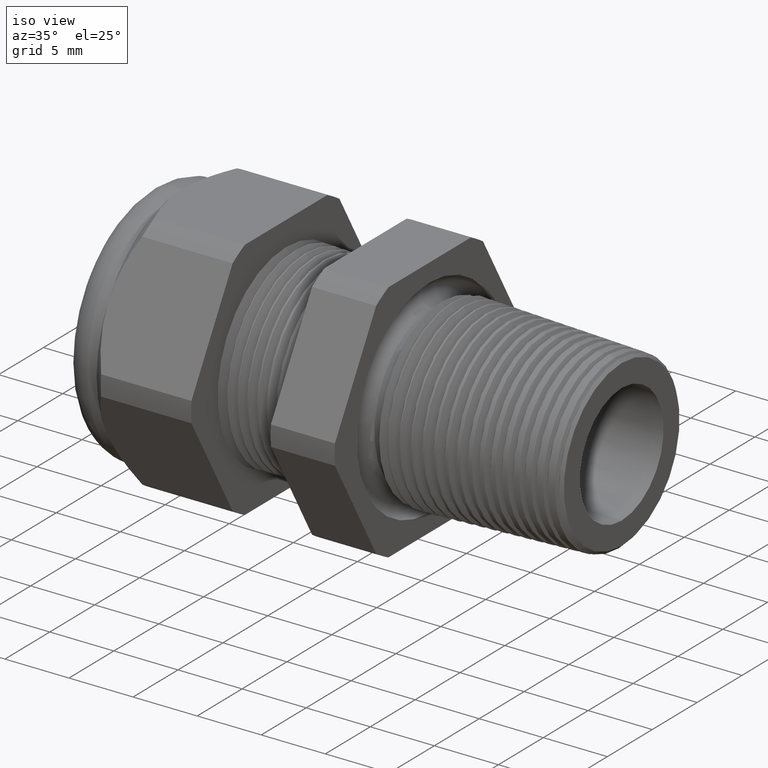
[diagram: clean part render]
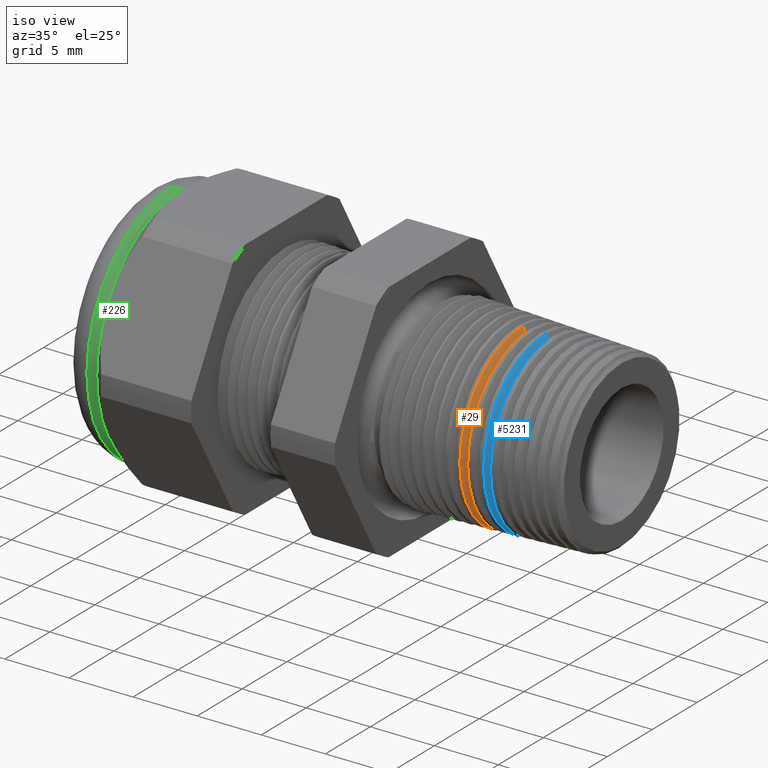
[diagram: same view with three faces highlighted in distinct colors, each labeled with its STEP entity id]
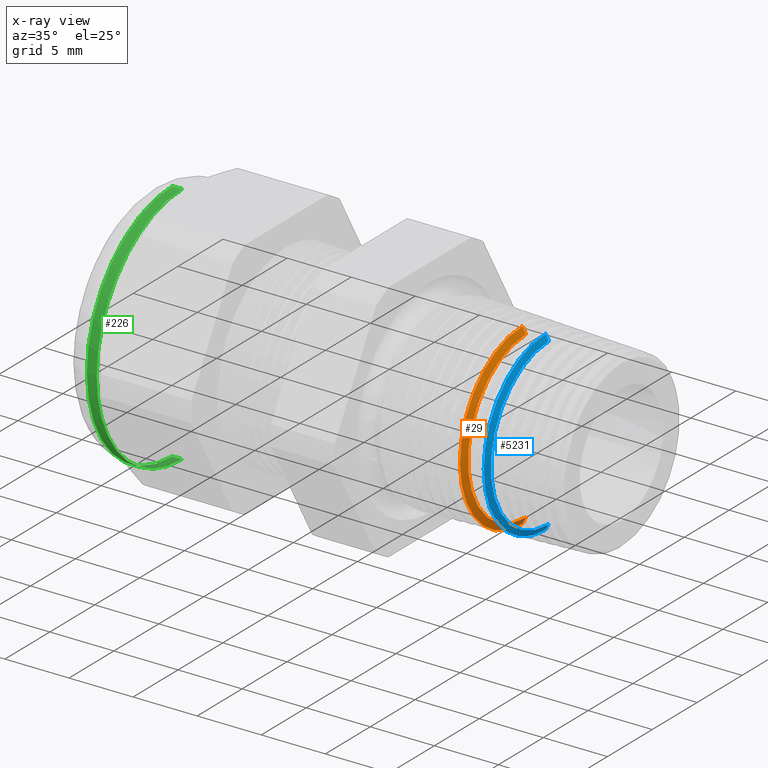
[diagram: x-ray of the same camera — body ghosted, the three highlighted faces saturated]
A machine part, iso view with three faces highlighted in distinct colors.
The next image is the same camera in x-ray (body ghosted, the three faces saturated) — at least one of them is partly hidden behind the body in this view.
Their STEP definitions:

[orange] entity #29 — the highlighted conical surface has half-angle 62 deg.
#29 = ADVANCED_FACE ( 'NONE', ( #1609 ), #1608, .T. ) ;
#30 = EDGE_LOOP ( 'NONE', ( #5206, #5205, #5204, #5195 ) ) ;
#663 = VERTEX_POINT ( 'NONE', #2816 ) ;
#664 = VERTEX_POINT ( 'NONE', #2815 ) ;
#728 = VERTEX_POINT ( 'NONE', #2939 ) ;
#735 = EDGE_CURVE ( 'NONE', #664, #838, #2931, .T. ) ;
#802 = EDGE_CURVE ( 'NONE', #663, #728, #2537, .T. ) ;
#838 = VERTEX_POINT ( 'NONE', #3167 ) ;
#1486 = EDGE_CURVE ( 'NONE', #838, #728, #4338, .T. ) ;
#1605 = DIRECTION ( 'NONE',  ( 0.0000000000000000000, 0.0000000000000000000, 1.000000000000000000 ) ) ;
#1606 = DIRECTION ( 'NONE',  ( -1.000000000000000000, 0.0000000000000000000, 0.0000000000000000000 ) ) ;
#1607 = AXIS2_PLACEMENT_3D ( 'NONE', #1613, #1606, #1605 ) ;
#1608 = CONICAL_SURFACE ( 'NONE', #1607, 0.2846046150878539500, 1.082104136236471800 ) ;
#1609 = FACE_OUTER_BOUND ( 'NONE', #30, .T. ) ;
#1613 = CARTESIAN_POINT ( 'NONE',  ( -0.02999999999999995400, 0.0000000000000000000, 0.0000000000000000000 ) ) ;
#2537 = LINE ( 'NONE', #2795, #2794 ) ;
#2793 = DIRECTION ( 'NONE',  ( -0.4694715627859018000, 1.081298943409538000E-016, -0.8829475928589209900 ) ) ;
#2794 = VECTOR ( 'NONE', #2793, 39.37007874015748100 ) ;
#2795 = CARTESIAN_POINT ( 'NONE',  ( -0.02999999999999995400, 3.485401308899049100E-017, -0.2846046150878539500 ) ) ;
#2815 = CARTESIAN_POINT ( 'NONE',  ( -0.01373702801092103300, 0.0000000000000000000, 0.2540184132628081100 ) ) ;
#2816 = CARTESIAN_POINT ( 'NONE',  ( -0.01373702801092103300, 3.237110271424059000E-017, -0.2540184132628081100 ) ) ;
#2928 = DIRECTION ( 'NONE',  ( -0.4694715627859018000, 0.0000000000000000000, 0.8829475928589209900 ) ) ;
#2929 = VECTOR ( 'NONE', #2928, 39.37007874015748100 ) ;
#2930 = CARTESIAN_POINT ( 'NONE',  ( -0.02999999999999995400, 0.0000000000000000000, 0.2846046150878539500 ) ) ;
#2931 = LINE ( 'NONE', #2930, #2929 ) ;
#2939 = CARTESIAN_POINT ( 'NONE',  ( -0.02470268431848090000, 3.365724902851396500E-017, -0.2746418132903272200 ) ) ;
#3167 = CARTESIAN_POINT ( 'NONE',  ( -0.02470268431848090000, 0.0000000000000000000, 0.2746418132903272200 ) ) ;
#4338 = CIRCLE ( 'NONE', #4396, 0.2746418132903272200 ) ;
#4393 = DIRECTION ( 'NONE',  ( 0.0000000000000000000, 0.0000000000000000000, 1.000000000000000000 ) ) ;
#4394 = DIRECTION ( 'NONE',  ( 1.000000000000000000, 0.0000000000000000000, 0.0000000000000000000 ) ) ;
#4395 = CARTESIAN_POINT ( 'NONE',  ( -0.02470268431848090000, 0.0000000000000000000, 0.0000000000000000000 ) ) ;
#4396 = AXIS2_PLACEMENT_3D ( 'NONE', #4395, #4394, #4393 ) ;
#4600 = DIRECTION ( 'NONE',  ( 0.0000000000000000000, 0.0000000000000000000, -1.000000000000000000 ) ) ;
#4601 = DIRECTION ( 'NONE',  ( 1.000000000000000000, 0.0000000000000000000, 0.0000000000000000000 ) ) ;
#4602 = AXIS2_PLACEMENT_3D ( 'NONE', #4607, #4601, #4600 ) ;
#4603 = CIRCLE ( 'NONE', #4602, 0.2540184132628081100 ) ;
#4607 = CARTESIAN_POINT ( 'NONE',  ( -0.01373702801092103300, 0.0000000000000000000, 0.0000000000000000000 ) ) ;
#5195 = ORIENTED_EDGE ( 'NONE', *, *, #1486, .T. ) ;
#5203 = EDGE_CURVE ( 'NONE', #664, #663, #4603, .T. ) ;
#5204 = ORIENTED_EDGE ( 'NONE', *, *, #735, .T. ) ;
#5205 = ORIENTED_EDGE ( 'NONE', *, *, #5203, .F. ) ;
#5206 = ORIENTED_EDGE ( 'NONE', *, *, #802, .F. ) ;

[blue] entity #5231 — the highlighted conical surface has half-angle 62 deg.
#642 = VERTEX_POINT ( 'NONE', #2732 ) ;
#697 = EDGE_CURVE ( 'NONE', #736, #751, #2882, .T. ) ;
#736 = VERTEX_POINT ( 'NONE', #2927 ) ;
#749 = EDGE_CURVE ( 'NONE', #642, #750, #2972, .T. ) ;
#750 = VERTEX_POINT ( 'NONE', #2963 ) ;
#751 = VERTEX_POINT ( 'NONE', #2962 ) ;
#1419 = EDGE_CURVE ( 'NONE', #751, #750, #4220, .T. ) ;
#2732 = CARTESIAN_POINT ( 'NONE',  ( 0.05626297198907897300, 3.221859129759208100E-017, -0.2540184132628081100 ) ) ;
#2879 = DIRECTION ( 'NONE',  ( -0.4694715627859018000, 0.0000000000000000000, 0.8829475928589209900 ) ) ;
#2880 = VECTOR ( 'NONE', #2879, 39.37007874015748100 ) ;
#2881 = CARTESIAN_POINT ( 'NONE',  ( 0.04000000000000004900, 0.0000000000000000000, 0.2846046150878539500 ) ) ;
#2882 = LINE ( 'NONE', #2881, #2880 ) ;
#2927 = CARTESIAN_POINT ( 'NONE',  ( 0.05626297198907897300, 0.0000000000000000000, 0.2540184132628081100 ) ) ;
#2962 = CARTESIAN_POINT ( 'NONE',  ( 0.04662164460189885400, 0.0000000000000000000, 0.2721511128409456200 ) ) ;
#2963 = CARTESIAN_POINT ( 'NONE',  ( 0.04662164460189885400, 3.335825438049709200E-017, -0.2721511128409456200 ) ) ;
#2964 = DIRECTION ( 'NONE',  ( -0.4694715627859018000, 1.081298943409538000E-016, -0.8829475928589209900 ) ) ;
#2965 = VECTOR ( 'NONE', #2964, 39.37007874015748100 ) ;
#2966 = CARTESIAN_POINT ( 'NONE',  ( 0.04000000000000004900, 3.485401308899049100E-017, -0.2846046150878539500 ) ) ;
#2972 = LINE ( 'NONE', #2966, #2965 ) ;
#4217 = DIRECTION ( 'NONE',  ( 0.0000000000000000000, 0.0000000000000000000, 1.000000000000000000 ) ) ;
#4218 = DIRECTION ( 'NONE',  ( 1.000000000000000000, 0.0000000000000000000, 0.0000000000000000000 ) ) ;
#4219 = AXIS2_PLACEMENT_3D ( 'NONE', #4225, #4218, #4217 ) ;
#4220 = CIRCLE ( 'NONE', #4219, 0.2721511128409456200 ) ;
#4225 = CARTESIAN_POINT ( 'NONE',  ( 0.04662164460189885400, 0.0000000000000000000, 0.0000000000000000000 ) ) ;
#4635 = DIRECTION ( 'NONE',  ( 0.0000000000000000000, 0.0000000000000000000, 1.000000000000000000 ) ) ;
#4636 = DIRECTION ( 'NONE',  ( -1.000000000000000000, 0.0000000000000000000, 0.0000000000000000000 ) ) ;
#4637 = CARTESIAN_POINT ( 'NONE',  ( 0.04000000000000004900, 0.0000000000000000000, 0.0000000000000000000 ) ) ;
#4638 = AXIS2_PLACEMENT_3D ( 'NONE', #4637, #4636, #4635 ) ;
#4640 = CONICAL_SURFACE ( 'NONE', #4638, 0.2846046150878539500, 1.082104136236471800 ) ;
#4641 = FACE_OUTER_BOUND ( 'NONE', #5227, .T. ) ;
#4642 = DIRECTION ( 'NONE',  ( 0.0000000000000000000, 0.0000000000000000000, -1.000000000000000000 ) ) ;
#4643 = DIRECTION ( 'NONE',  ( 1.000000000000000000, 0.0000000000000000000, 0.0000000000000000000 ) ) ;
#4644 = CARTESIAN_POINT ( 'NONE',  ( 0.05626297198907897300, 0.0000000000000000000, 0.0000000000000000000 ) ) ;
#4645 = AXIS2_PLACEMENT_3D ( 'NONE', #4644, #4643, #4642 ) ;
#4649 = CIRCLE ( 'NONE', #4645, 0.2540184132628081100 ) ;
#5224 = ORIENTED_EDGE ( 'NONE', *, *, #697, .T. ) ;
#5225 = ORIENTED_EDGE ( 'NONE', *, *, #5228, .F. ) ;
#5226 = ORIENTED_EDGE ( 'NONE', *, *, #749, .F. ) ;
#5227 = EDGE_LOOP ( 'NONE', ( #5226, #5225, #5224, #5246 ) ) ;
#5228 = EDGE_CURVE ( 'NONE', #736, #642, #4649, .T. ) ;
#5231 = ADVANCED_FACE ( 'NONE', ( #4641 ), #4640, .T. ) ;
#5246 = ORIENTED_EDGE ( 'NONE', *, *, #1419, .T. ) ;

[green] entity #226 — the highlighted cylindrical surface (partial cylindrical patch) has radius 9.525 mm, axis along (1, 0, 0).
#85 = VERTEX_POINT ( 'NONE', #1729 ) ;
#118 = VERTEX_POINT ( 'NONE', #1839 ) ;
#165 = EDGE_LOOP ( 'NONE', ( #227, #228, #230, #231, #233, #235 ) ) ;
#212 = EDGE_CURVE ( 'NONE', #1204, #85, #2024, .T. ) ;
#226 = ADVANCED_FACE ( 'NONE', ( #2053 ), #2052, .T. ) ;
#227 = ORIENTED_EDGE ( 'NONE', *, *, #1203, .F. ) ;
#228 = ORIENTED_EDGE ( 'NONE', *, *, #229, .T. ) ;
#229 = EDGE_CURVE ( 'NONE', #1161, #1160, #2051, .T. ) ;
#230 = ORIENTED_EDGE ( 'NONE', *, *, #1186, .T. ) ;
#231 = ORIENTED_EDGE ( 'NONE', *, *, #232, .F. ) ;
#232 = EDGE_CURVE ( 'NONE', #118, #1184, #2042, .T. ) ;
#233 = ORIENTED_EDGE ( 'NONE', *, *, #234, .F. ) ;
#234 = EDGE_CURVE ( 'NONE', #85, #118, #2037, .T. ) ;
#235 = ORIENTED_EDGE ( 'NONE', *, *, #212, .F. ) ;
#1160 = VERTEX_POINT ( 'NONE', #3745 ) ;
#1161 = VERTEX_POINT ( 'NONE', #3744 ) ;
#1184 = VERTEX_POINT ( 'NONE', #3823 ) ;
#1186 = EDGE_CURVE ( 'NONE', #1160, #1184, #3822, .T. ) ;
#1203 = EDGE_CURVE ( 'NONE', #1161, #1204, #3861, .T. ) ;
#1204 = VERTEX_POINT ( 'NONE', #3852 ) ;
#1729 = CARTESIAN_POINT ( 'NONE',  ( -1.069763779527559000, -0.3247595264191646700, 0.1874999999999999700 ) ) ;
#1839 = CARTESIAN_POINT ( 'NONE',  ( -1.069763779527559000, -0.3247595264191645600, -0.1875000000000000800 ) ) ;
#2020 = DIRECTION ( 'NONE',  ( 0.0000000000000000000, 0.0000000000000000000, -1.000000000000000000 ) ) ;
#2021 = DIRECTION ( 'NONE',  ( 1.000000000000000000, 0.0000000000000000000, 0.0000000000000000000 ) ) ;
#2022 = CARTESIAN_POINT ( 'NONE',  ( -1.069763779527559000, 0.0000000000000000000, 0.0000000000000000000 ) ) ;
#2023 = AXIS2_PLACEMENT_3D ( 'NONE', #2022, #2021, #2020 ) ;
#2024 = CIRCLE ( 'NONE', #2023, 0.3750000000000001100 ) ;
#2033 = DIRECTION ( 'NONE',  ( 0.0000000000000000000, 0.0000000000000000000, -1.000000000000000000 ) ) ;
#2034 = DIRECTION ( 'NONE',  ( 1.000000000000000000, 0.0000000000000000000, 0.0000000000000000000 ) ) ;
#2035 = CARTESIAN_POINT ( 'NONE',  ( -1.069763779527559000, 0.0000000000000000000, 0.0000000000000000000 ) ) ;
#2036 = AXIS2_PLACEMENT_3D ( 'NONE', #2035, #2034, #2033 ) ;
#2037 = CIRCLE ( 'NONE', #2036, 0.3750000000000001100 ) ;
#2038 = DIRECTION ( 'NONE',  ( 0.0000000000000000000, 0.0000000000000000000, -1.000000000000000000 ) ) ;
#2039 = DIRECTION ( 'NONE',  ( 1.000000000000000000, 0.0000000000000000000, 0.0000000000000000000 ) ) ;
#2040 = CARTESIAN_POINT ( 'NONE',  ( -1.069763779527559000, 0.0000000000000000000, 0.0000000000000000000 ) ) ;
#2041 = AXIS2_PLACEMENT_3D ( 'NONE', #2040, #2039, #2038 ) ;
#2042 = CIRCLE ( 'NONE', #2041, 0.3750000000000001100 ) ;
#2043 = DIRECTION ( 'NONE',  ( 0.0000000000000000000, 0.0000000000000000000, 1.000000000000000000 ) ) ;
#2044 = DIRECTION ( 'NONE',  ( 1.000000000000000000, 0.0000000000000000000, 0.0000000000000000000 ) ) ;
#2045 = CARTESIAN_POINT ( 'NONE',  ( -1.100000000000000100, 0.0000000000000000000, 0.0000000000000000000 ) ) ;
#2046 = AXIS2_PLACEMENT_3D ( 'NONE', #2045, #2044, #2043 ) ;
#2047 = DIRECTION ( 'NONE',  ( 0.0000000000000000000, 0.0000000000000000000, -1.000000000000000000 ) ) ;
#2048 = DIRECTION ( 'NONE',  ( 1.000000000000000000, 0.0000000000000000000, 0.0000000000000000000 ) ) ;
#2049 = CARTESIAN_POINT ( 'NONE',  ( 0.0000000000000000000, 0.0000000000000000000, 0.0000000000000000000 ) ) ;
#2050 = AXIS2_PLACEMENT_3D ( 'NONE', #2049, #2048, #2047 ) ;
#2051 = CIRCLE ( 'NONE', #2046, 0.3750000000000001100 ) ;
#2052 = CYLINDRICAL_SURFACE ( 'NONE', #2050, 0.3750000000000001100 ) ;
#2053 = FACE_OUTER_BOUND ( 'NONE', #165, .T. ) ;
#3744 = CARTESIAN_POINT ( 'NONE',  ( -1.100000000000000100, 4.592425496802576100E-017, 0.3750000000000001100 ) ) ;
#3745 = CARTESIAN_POINT ( 'NONE',  ( -1.100000000000000100, 0.0000000000000000000, -0.3750000000000001100 ) ) ;
#3819 = DIRECTION ( 'NONE',  ( 1.000000000000000000, 0.0000000000000000000, 0.0000000000000000000 ) ) ;
#3820 = VECTOR ( 'NONE', #3819, 39.37007874015748100 ) ;
#3821 = CARTESIAN_POINT ( 'NONE',  ( 0.0000000000000000000, 0.0000000000000000000, -0.3750000000000001100 ) ) ;
#3822 = LINE ( 'NONE', #3821, #3820 ) ;
#3823 = CARTESIAN_POINT ( 'NONE',  ( -1.069763779527559000, 0.0000000000000000000, -0.3750000000000001100 ) ) ;
#3852 = CARTESIAN_POINT ( 'NONE',  ( -1.069763779527559000, 0.0000000000000000000, 0.3749999999999999400 ) ) ;
#3853 = DIRECTION ( 'NONE',  ( 1.000000000000000000, 0.0000000000000000000, 0.0000000000000000000 ) ) ;
#3854 = VECTOR ( 'NONE', #3853, 39.37007874015748100 ) ;
#3855 = CARTESIAN_POINT ( 'NONE',  ( 0.0000000000000000000, 4.592425496802576100E-017, 0.3750000000000001100 ) ) ;
#3861 = LINE ( 'NONE', #3855, #3854 ) ;